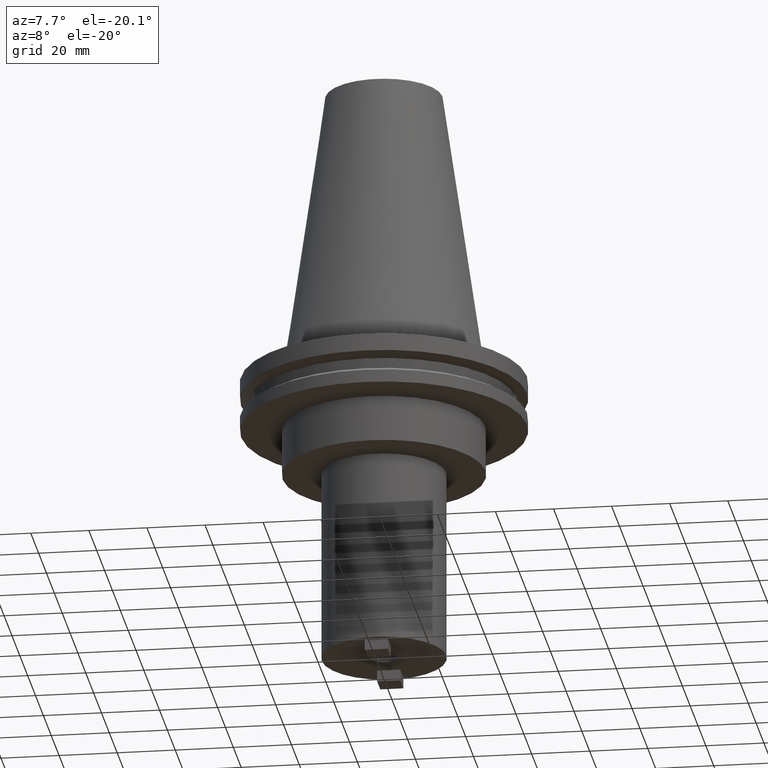
[diagram: clean part render]
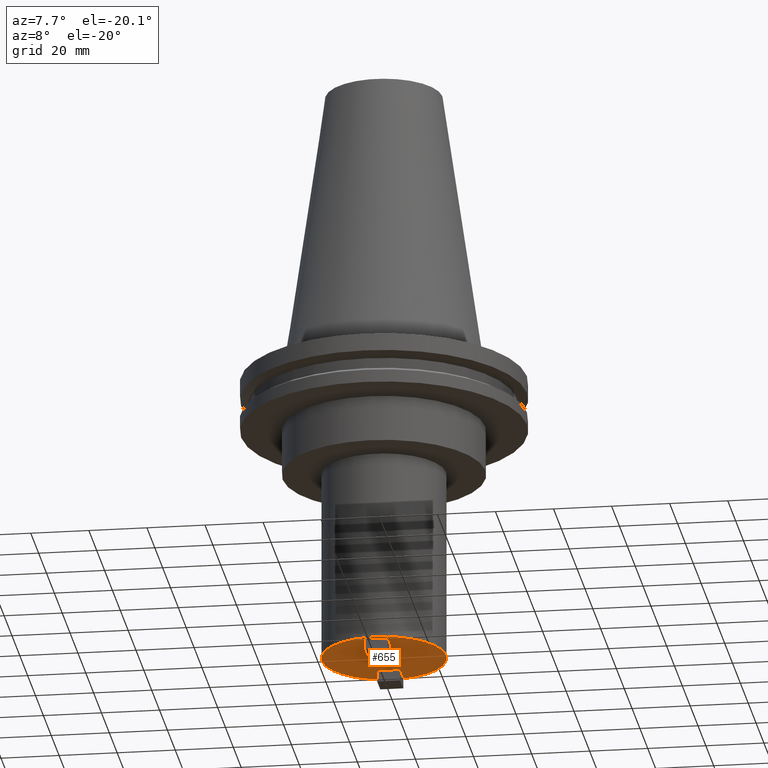
[diagram: same view with one face highlighted and labeled with its STEP entity id]
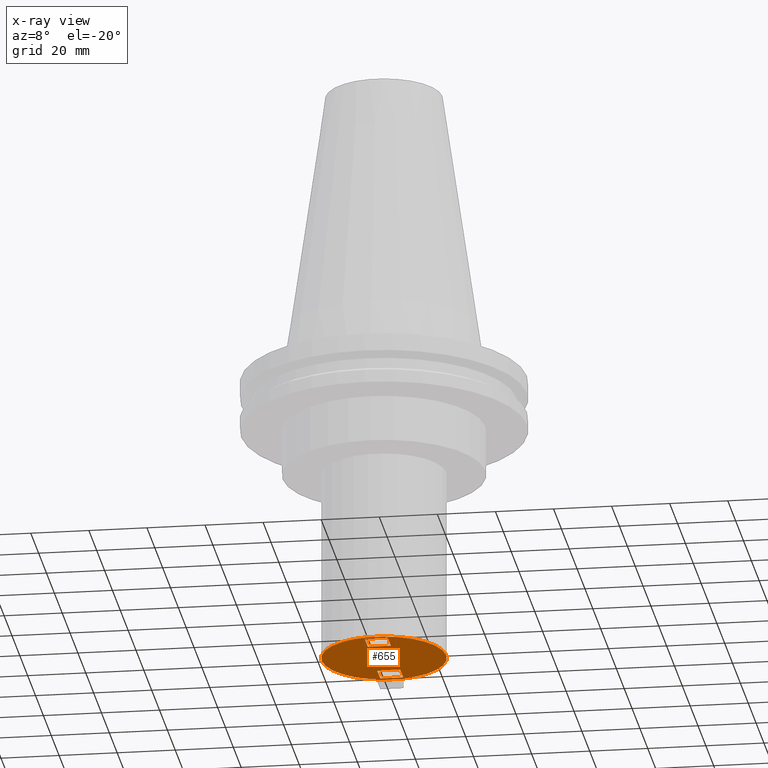
[diagram: x-ray of the same camera — body ghosted, the highlighted face saturated]
A machine part, auxiliary view. The second image highlights one B-rep face of the part: STEP entity #655.
The next image is the same camera in x-ray: the body ghosted, the highlighted face saturated — about 0% of this face is hidden behind the body in this view.
In plain terms, the highlighted planar face has unit normal (0, -0, 1).
Its self-contained STEP definition (entity closure, byte-faithful):
#11 = AXIS2_PLACEMENT_3D ( 'NONE', #163, #69, #327 ) ;
#20 = FACE_BOUND ( 'NONE', #393, .T. ) ;
#21 = EDGE_CURVE ( 'NONE', #1064, #329, #722, .T. ) ;
#28 = DIRECTION ( 'NONE',  ( 1.000000000000000000, -6.556435184794194253E-16, -0.000000000000000000 ) ) ;
#52 = ORIENTED_EDGE ( 'NONE', *, *, #292, .F. ) ;
#57 = EDGE_LOOP ( 'NONE', ( #843, #497, #907, #52 ) ) ;
#68 = CARTESIAN_POINT ( 'NONE',  ( 3.968750000000017319, 11.90624999999999289, -101.5999999999999943 ) ) ;
#69 = DIRECTION ( 'NONE',  ( -0.000000000000000000, -0.000000000000000000, 1.000000000000000000 ) ) ;
#80 = CARTESIAN_POINT ( 'NONE',  ( 3.968749999999996447, 19.84374999999998579, -101.5999999999999943 ) ) ;
#95 = EDGE_CURVE ( 'NONE', #898, #959, #929, .T. ) ;
#96 = VERTEX_POINT ( 'NONE', #905 ) ;
#122 = CARTESIAN_POINT ( 'NONE',  ( 0.000000000000000000, 0.000000000000000000, -101.5999999999999943 ) ) ;
#126 = DIRECTION ( 'NONE',  ( -0.000000000000000000, -0.000000000000000000, 1.000000000000000000 ) ) ;
#143 = VERTEX_POINT ( 'NONE', #659 ) ;
#149 = LINE ( 'NONE', #80, #1070 ) ;
#163 = CARTESIAN_POINT ( 'NONE',  ( 0.000000000000000000, 0.000000000000000000, -101.5999999999999943 ) ) ;
#170 = CARTESIAN_POINT ( 'NONE',  ( 3.968750000000034639, -11.90625000000000711, -101.5999999999999943 ) ) ;
#201 = CARTESIAN_POINT ( 'NONE',  ( 3.968750000000034639, -11.90625000000000533, -101.5999999999999943 ) ) ;
#207 = EDGE_CURVE ( 'NONE', #975, #560, #149, .T. ) ;
#211 = VERTEX_POINT ( 'NONE', #1018 ) ;
#220 = EDGE_LOOP ( 'NONE', ( #982, #275 ) ) ;
#228 = LINE ( 'NONE', #906, #353 ) ;
#275 = ORIENTED_EDGE ( 'NONE', *, *, #388, .F. ) ;
#282 = ORIENTED_EDGE ( 'NONE', *, *, #757, .T. ) ;
#292 = EDGE_CURVE ( 'NONE', #96, #1064, #348, .T. ) ;
#304 = CARTESIAN_POINT ( 'NONE',  ( -4.214999999999974101, 5.161886258406062987E-16, -101.5999999999999943 ) ) ;
#324 = VECTOR ( 'NONE', #593, 1000.000000000000000 ) ;
#327 = DIRECTION ( 'NONE',  ( 1.000000000000000000, 0.000000000000000000, 0.000000000000000000 ) ) ;
#329 = VERTEX_POINT ( 'NONE', #957 ) ;
#347 = CARTESIAN_POINT ( 'NONE',  ( 0.000000000000000000, 0.000000000000000000, -101.5999999999999943 ) ) ;
#348 = LINE ( 'NONE', #201, #546 ) ;
#353 = VECTOR ( 'NONE', #395, 1000.000000000000000 ) ;
#355 = AXIS2_PLACEMENT_3D ( 'NONE', #1044, #126, #871 ) ;
#364 = FACE_BOUND ( 'NONE', #1078, .T. ) ;
#370 = DIRECTION ( 'NONE',  ( 1.000000000000000000, 0.000000000000000000, 0.000000000000000000 ) ) ;
#371 = ORIENTED_EDGE ( 'NONE', *, *, #931, .F. ) ;
#388 = EDGE_CURVE ( 'NONE', #959, #898, #491, .T. ) ;
#393 = EDGE_LOOP ( 'NONE', ( #282, #1033 ) ) ;
#395 = DIRECTION ( 'NONE',  ( -1.000000000000000000, 8.741913579725607786E-16, 0.000000000000000000 ) ) ;
#397 = DIRECTION ( 'NONE',  ( -1.000000000000000000, 3.059669752903962577E-15, 0.000000000000000000 ) ) ;
#401 = CARTESIAN_POINT ( 'NONE',  ( 21.45029999999999859, 0.000000000000000000, -101.5999999999999943 ) ) ;
#416 = DIRECTION ( 'NONE',  ( 1.000000000000000000, -1.748382715945127671E-15, -0.000000000000000000 ) ) ;
#439 = CARTESIAN_POINT ( 'NONE',  ( -3.968750000000009770, -19.84375000000001421, -101.5999999999999943 ) ) ;
#484 = LINE ( 'NONE', #827, #550 ) ;
#487 = EDGE_CURVE ( 'NONE', #667, #96, #581, .T. ) ;
#491 = CIRCLE ( 'NONE', #794, 21.45029999999999859 ) ;
#497 = ORIENTED_EDGE ( 'NONE', *, *, #504, .F. ) ;
#504 = EDGE_CURVE ( 'NONE', #329, #667, #228, .T. ) ;
#522 = DIRECTION ( 'NONE',  ( 1.000000000000000000, 0.000000000000000000, 0.000000000000000000 ) ) ;
#535 = VERTEX_POINT ( 'NONE', #304 ) ;
#546 = VECTOR ( 'NONE', #28, 1000.000000000000000 ) ;
#550 = VECTOR ( 'NONE', #993, 1000.000000000000000 ) ;
#560 = VERTEX_POINT ( 'NONE', #829 ) ;
#567 = ORIENTED_EDGE ( 'NONE', *, *, #955, .F. ) ;
#579 = DIRECTION ( 'NONE',  ( -1.748382715945124910E-15, -1.000000000000000000, -0.000000000000000000 ) ) ;
#581 = LINE ( 'NONE', #991, #857 ) ;
#585 = VECTOR ( 'NONE', #579, 1000.000000000000000 ) ;
#590 = VECTOR ( 'NONE', #397, 1000.000000000000000 ) ;
#593 = DIRECTION ( 'NONE',  ( 7.649174382259953775E-16, 1.000000000000000000, -0.000000000000000000 ) ) ;
#644 = DIRECTION ( 'NONE',  ( -1.092739197465703315E-16, 1.000000000000000000, 0.000000000000000000 ) ) ;
#651 = CARTESIAN_POINT ( 'NONE',  ( -3.968750000000007105, 19.84375000000000000, -101.5999999999999943 ) ) ;
#655 = ADVANCED_FACE ( 'NONE', ( #364, #1036, #20, #842 ), #910, .F. ) ;
#659 = CARTESIAN_POINT ( 'NONE',  ( -3.968750000000012879, 11.90625000000001776, -101.5999999999999943 ) ) ;
#667 = VERTEX_POINT ( 'NONE', #439 ) ;
#677 = DIRECTION ( 'NONE',  ( 0.000000000000000000, -0.000000000000000000, 1.000000000000000000 ) ) ;
#689 = AXIS2_PLACEMENT_3D ( 'NONE', #771, #677, #939 ) ;
#722 = LINE ( 'NONE', #762, #585 ) ;
#757 = EDGE_CURVE ( 'NONE', #1058, #535, #1072, .T. ) ;
#762 = CARTESIAN_POINT ( 'NONE',  ( 3.968750000000020872, -19.84375000000002132, -101.5999999999999943 ) ) ;
#765 = ORIENTED_EDGE ( 'NONE', *, *, #918, .F. ) ;
#771 = CARTESIAN_POINT ( 'NONE',  ( 0.000000000000000000, 21.45029999999999859, -101.5999999999999943 ) ) ;
#794 = AXIS2_PLACEMENT_3D ( 'NONE', #122, #1025, #370 ) ;
#827 = CARTESIAN_POINT ( 'NONE',  ( 3.968749999999996447, 19.84374999999998579, -101.5999999999999943 ) ) ;
#829 = CARTESIAN_POINT ( 'NONE',  ( 3.968749999999996447, 19.84374999999998579, -101.5999999999999943 ) ) ;
#842 = FACE_BOUND ( 'NONE', #57, .T. ) ;
#843 = ORIENTED_EDGE ( 'NONE', *, *, #487, .F. ) ;
#857 = VECTOR ( 'NONE', #644, 1000.000000000000000 ) ;
#871 = DIRECTION ( 'NONE',  ( 1.000000000000000000, 0.000000000000000000, 0.000000000000000000 ) ) ;
#877 = CIRCLE ( 'NONE', #900, 4.214999999999974989 ) ;
#893 = ORIENTED_EDGE ( 'NONE', *, *, #207, .F. ) ;
#898 = VERTEX_POINT ( 'NONE', #401 ) ;
#900 = AXIS2_PLACEMENT_3D ( 'NONE', #347, #924, #522 ) ;
#905 = CARTESIAN_POINT ( 'NONE',  ( -3.968750000000010658, -11.90625000000000533, -101.5999999999999943 ) ) ;
#906 = CARTESIAN_POINT ( 'NONE',  ( 3.968750000000020872, -19.84375000000002132, -101.5999999999999943 ) ) ;
#907 = ORIENTED_EDGE ( 'NONE', *, *, #21, .F. ) ;
#908 = CARTESIAN_POINT ( 'NONE',  ( -3.968750000000007105, 19.84375000000000000, -101.5999999999999943 ) ) ;
#910 = PLANE ( 'NONE',  #689 ) ;
#918 = EDGE_CURVE ( 'NONE', #143, #975, #989, .T. ) ;
#924 = DIRECTION ( 'NONE',  ( -0.000000000000000000, -0.000000000000000000, 1.000000000000000000 ) ) ;
#929 = CIRCLE ( 'NONE', #11, 21.45029999999999859 ) ;
#931 = EDGE_CURVE ( 'NONE', #211, #143, #1003, .T. ) ;
#939 = DIRECTION ( 'NONE',  ( 1.000000000000000000, 0.000000000000000000, 0.000000000000000000 ) ) ;
#955 = EDGE_CURVE ( 'NONE', #560, #211, #484, .T. ) ;
#957 = CARTESIAN_POINT ( 'NONE',  ( 3.968750000000020872, -19.84375000000001776, -101.5999999999999943 ) ) ;
#959 = VERTEX_POINT ( 'NONE', #981 ) ;
#975 = VERTEX_POINT ( 'NONE', #651 ) ;
#981 = CARTESIAN_POINT ( 'NONE',  ( -21.45029999999999859, 2.626904123575046818E-15, -101.5999999999999943 ) ) ;
#982 = ORIENTED_EDGE ( 'NONE', *, *, #95, .F. ) ;
#989 = LINE ( 'NONE', #908, #324 ) ;
#991 = CARTESIAN_POINT ( 'NONE',  ( -3.968750000000009770, -19.84375000000001421, -101.5999999999999943 ) ) ;
#993 = DIRECTION ( 'NONE',  ( 2.622574073917694662E-15, -1.000000000000000000, 0.000000000000000000 ) ) ;
#1003 = LINE ( 'NONE', #68, #590 ) ;
#1016 = CARTESIAN_POINT ( 'NONE',  ( 4.214999999999974989, 0.000000000000000000, -101.5999999999999943 ) ) ;
#1018 = CARTESIAN_POINT ( 'NONE',  ( 3.968750000000017319, 11.90624999999999289, -101.5999999999999943 ) ) ;
#1025 = DIRECTION ( 'NONE',  ( -0.000000000000000000, -0.000000000000000000, 1.000000000000000000 ) ) ;
#1028 = EDGE_CURVE ( 'NONE', #535, #1058, #877, .T. ) ;
#1033 = ORIENTED_EDGE ( 'NONE', *, *, #1028, .T. ) ;
#1036 = FACE_OUTER_BOUND ( 'NONE', #220, .T. ) ;
#1044 = CARTESIAN_POINT ( 'NONE',  ( 0.000000000000000000, 0.000000000000000000, -101.5999999999999943 ) ) ;
#1058 = VERTEX_POINT ( 'NONE', #1016 ) ;
#1064 = VERTEX_POINT ( 'NONE', #170 ) ;
#1070 = VECTOR ( 'NONE', #416, 1000.000000000000000 ) ;
#1072 = CIRCLE ( 'NONE', #355, 4.214999999999974989 ) ;
#1078 = EDGE_LOOP ( 'NONE', ( #765, #371, #567, #893 ) ) ;